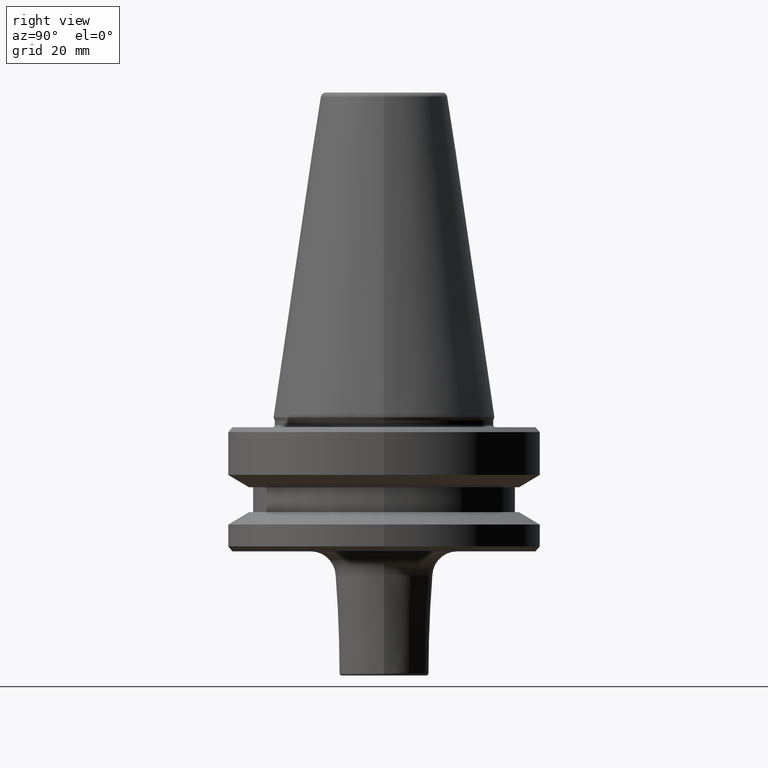
[diagram: clean part render]
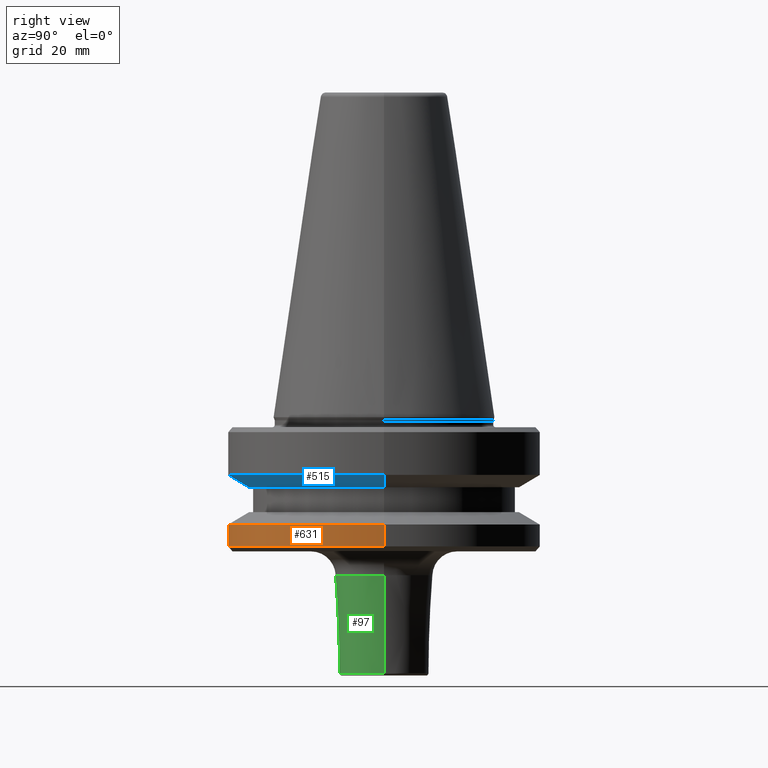
[diagram: same view with three faces highlighted in distinct colors, each labeled with its STEP entity id]
A machine part, right view with three faces highlighted in distinct colors.
Their STEP definitions:

[orange] entity #631 — the highlighted cylindrical surface (partial cylindrical patch) has radius 31.5 mm, axis along (-0, -0, 1).
#22 = VECTOR ( 'NONE', #291, 1000.000000000000000 ) ;
#49 = LINE ( 'NONE', #930, #22 ) ;
#115 = ORIENTED_EDGE ( 'NONE', *, *, #670, .T. ) ;
#121 = CARTESIAN_POINT ( 'NONE',  ( -31.50000000000008500, 3.857637417314172900E-015, -91.40000000000037500 ) ) ;
#148 = DIRECTION ( 'NONE',  ( -0.0000000000000000000, -0.0000000000000000000, 1.000000000000000000 ) ) ;
#151 = ORIENTED_EDGE ( 'NONE', *, *, #713, .F. ) ;
#191 = AXIS2_PLACEMENT_3D ( 'NONE', #519, #721, #795 ) ;
#200 = ORIENTED_EDGE ( 'NONE', *, *, #264, .T. ) ;
#211 = AXIS2_PLACEMENT_3D ( 'NONE', #694, #148, #371 ) ;
#219 = VERTEX_POINT ( 'NONE', #903 ) ;
#264 = EDGE_CURVE ( 'NONE', #917, #219, #390, .T. ) ;
#291 = DIRECTION ( 'NONE',  ( -0.0000000000000000000, -0.0000000000000000000, 1.000000000000000000 ) ) ;
#294 = DIRECTION ( 'NONE',  ( 1.000000000000000000, 0.0000000000000000000, 0.0000000000000000000 ) ) ;
#298 = VECTOR ( 'NONE', #393, 1000.000000000000000 ) ;
#371 = DIRECTION ( 'NONE',  ( 1.000000000000000000, 0.0000000000000000000, 0.0000000000000000000 ) ) ;
#390 = CIRCLE ( 'NONE', #1006, 31.50000000000008500 ) ;
#393 = DIRECTION ( 'NONE',  ( -0.0000000000000000000, -0.0000000000000000000, 1.000000000000000000 ) ) ;
#460 = CIRCLE ( 'NONE', #211, 31.50000000000008500 ) ;
#471 = EDGE_CURVE ( 'NONE', #477, #590, #460, .T. ) ;
#477 = VERTEX_POINT ( 'NONE', #961 ) ;
#491 = EDGE_LOOP ( 'NONE', ( #151, #200, #115, #526 ) ) ;
#519 = CARTESIAN_POINT ( 'NONE',  ( 0.0000000000000000000, 0.0000000000000000000, 6.357346922996331500 ) ) ;
#526 = ORIENTED_EDGE ( 'NONE', *, *, #471, .F. ) ;
#547 = FACE_OUTER_BOUND ( 'NONE', #491, .T. ) ;
#590 = VERTEX_POINT ( 'NONE', #858 ) ;
#631 = ADVANCED_FACE ( 'NONE', ( #547 ), #741, .T. ) ;
#670 = EDGE_CURVE ( 'NONE', #219, #590, #717, .T. ) ;
#694 = CARTESIAN_POINT ( 'NONE',  ( 0.0000000000000000000, 0.0000000000000000000, -87.00014200631733300 ) ) ;
#713 = EDGE_CURVE ( 'NONE', #917, #477, #49, .T. ) ;
#717 = LINE ( 'NONE', #982, #298 ) ;
#721 = DIRECTION ( 'NONE',  ( -0.0000000000000000000, -0.0000000000000000000, 1.000000000000000000 ) ) ;
#733 = DIRECTION ( 'NONE',  ( -0.0000000000000000000, -0.0000000000000000000, 1.000000000000000000 ) ) ;
#741 = CYLINDRICAL_SURFACE ( 'NONE', #191, 31.50000000000008500 ) ;
#795 = DIRECTION ( 'NONE',  ( 1.000000000000000000, 0.0000000000000000000, 0.0000000000000000000 ) ) ;
#858 = CARTESIAN_POINT ( 'NONE',  ( 31.50000000000008500, 0.0000000000000000000, -87.00014200631733300 ) ) ;
#903 = CARTESIAN_POINT ( 'NONE',  ( 31.50000000000008500, 0.0000000000000000000, -91.40000000000037500 ) ) ;
#914 = CARTESIAN_POINT ( 'NONE',  ( 0.0000000000000000000, 0.0000000000000000000, -91.40000000000037500 ) ) ;
#917 = VERTEX_POINT ( 'NONE', #121 ) ;
#930 = CARTESIAN_POINT ( 'NONE',  ( -31.50000000000008500, 3.857637417314172900E-015, 6.357346922996331500 ) ) ;
#961 = CARTESIAN_POINT ( 'NONE',  ( -31.50000000000008500, 3.857637417314172900E-015, -87.00014200631733300 ) ) ;
#982 = CARTESIAN_POINT ( 'NONE',  ( 31.50000000000008500, 0.0000000000000000000, 6.357346922996331500 ) ) ;
#1006 = AXIS2_PLACEMENT_3D ( 'NONE', #914, #733, #294 ) ;

[blue] entity #515 — the highlighted conical surface has half-angle 60 deg.
#35 = AXIS2_PLACEMENT_3D ( 'NONE', #204, #913, #656 ) ;
#45 = CIRCLE ( 'NONE', #35, 31.50000000000008500 ) ;
#61 = CARTESIAN_POINT ( 'NONE',  ( -31.50000000000008500, 3.857637417314172900E-015, -76.99985799368391800 ) ) ;
#65 = EDGE_LOOP ( 'NONE', ( #860, #228, #313, #737 ) ) ;
#99 = EDGE_CURVE ( 'NONE', #1015, #475, #649, .T. ) ;
#166 = DIRECTION ( 'NONE',  ( 1.000000000000000000, 0.0000000000000000000, 0.0000000000000000000 ) ) ;
#174 = LINE ( 'NONE', #799, #1009 ) ;
#187 = CONICAL_SURFACE ( 'NONE', #622, 31.50000000000008500, 1.047197551196597400 ) ;
#204 = CARTESIAN_POINT ( 'NONE',  ( 0.0000000000000000000, 0.0000000000000000000, -76.99985799368391800 ) ) ;
#228 = ORIENTED_EDGE ( 'NONE', *, *, #99, .T. ) ;
#245 = DIRECTION ( 'NONE',  ( -0.0000000000000000000, -0.0000000000000000000, 1.000000000000000000 ) ) ;
#313 = ORIENTED_EDGE ( 'NONE', *, *, #886, .T. ) ;
#364 = DIRECTION ( 'NONE',  ( 0.8660254037844383700, 0.0000000000000000000, 0.5000000000000003300 ) ) ;
#388 = CARTESIAN_POINT ( 'NONE',  ( -31.50000000000008500, 3.857637417314172900E-015, -76.99985799368391800 ) ) ;
#444 = CARTESIAN_POINT ( 'NONE',  ( 31.50000000000008500, 0.0000000000000000000, -76.99985799368391800 ) ) ;
#466 = DIRECTION ( 'NONE',  ( -0.0000000000000000000, -0.0000000000000000000, 1.000000000000000000 ) ) ;
#470 = EDGE_CURVE ( 'NONE', #1015, #481, #1047, .T. ) ;
#475 = VERTEX_POINT ( 'NONE', #1025 ) ;
#481 = VERTEX_POINT ( 'NONE', #388 ) ;
#500 = CARTESIAN_POINT ( 'NONE',  ( -27.16962701892322600, 3.592478546794674900E-015, -79.50000000000012800 ) ) ;
#508 = VERTEX_POINT ( 'NONE', #444 ) ;
#515 = ADVANCED_FACE ( 'NONE', ( #1045 ), #187, .T. ) ;
#606 = DIRECTION ( 'NONE',  ( -0.8660254037844383700, 1.060575238724906500E-016, 0.5000000000000003300 ) ) ;
#608 = AXIS2_PLACEMENT_3D ( 'NONE', #1044, #245, #699 ) ;
#622 = AXIS2_PLACEMENT_3D ( 'NONE', #976, #466, #166 ) ;
#649 = CIRCLE ( 'NONE', #608, 27.16962701892322600 ) ;
#656 = DIRECTION ( 'NONE',  ( 1.000000000000000000, 0.0000000000000000000, 0.0000000000000000000 ) ) ;
#699 = DIRECTION ( 'NONE',  ( 1.000000000000000000, 0.0000000000000000000, 0.0000000000000000000 ) ) ;
#737 = ORIENTED_EDGE ( 'NONE', *, *, #1042, .F. ) ;
#799 = CARTESIAN_POINT ( 'NONE',  ( 31.50000000000008500, 0.0000000000000000000, -76.99985799368391800 ) ) ;
#860 = ORIENTED_EDGE ( 'NONE', *, *, #470, .F. ) ;
#886 = EDGE_CURVE ( 'NONE', #475, #508, #174, .T. ) ;
#908 = VECTOR ( 'NONE', #606, 1000.000000000000100 ) ;
#913 = DIRECTION ( 'NONE',  ( -0.0000000000000000000, -0.0000000000000000000, 1.000000000000000000 ) ) ;
#976 = CARTESIAN_POINT ( 'NONE',  ( 0.0000000000000000000, 0.0000000000000000000, -76.99985799368391800 ) ) ;
#1009 = VECTOR ( 'NONE', #364, 1000.000000000000100 ) ;
#1015 = VERTEX_POINT ( 'NONE', #500 ) ;
#1025 = CARTESIAN_POINT ( 'NONE',  ( 27.16962701892322600, 0.0000000000000000000, -79.50000000000012800 ) ) ;
#1042 = EDGE_CURVE ( 'NONE', #481, #508, #45, .T. ) ;
#1044 = CARTESIAN_POINT ( 'NONE',  ( 0.0000000000000000000, 0.0000000000000000000, -79.50000000000012800 ) ) ;
#1045 = FACE_OUTER_BOUND ( 'NONE', #65, .T. ) ;
#1047 = LINE ( 'NONE', #61, #908 ) ;

[green] entity #97 — the highlighted conical surface has half-angle 2.291 deg.
#13 = DIRECTION ( 'NONE',  ( 0.03996803834887197700, 0.0000000000000000000, 0.9992009587217894900 ) ) ;
#31 = CARTESIAN_POINT ( 'NONE',  ( 9.019200639233005700, 0.0000000000000000000, -116.9199840191827900 ) ) ;
#44 = CARTESIAN_POINT ( 'NONE',  ( -9.019200639233005700, 1.104533519370446200E-015, -116.9199840191827900 ) ) ;
#79 = AXIS2_PLACEMENT_3D ( 'NONE', #892, #619, #943 ) ;
#87 = CARTESIAN_POINT ( 'NONE',  ( 0.0000000000000000000, 0.0000000000000000000, -116.9199840191827900 ) ) ;
#97 = ADVANCED_FACE ( 'NONE', ( #459 ), #438, .T. ) ;
#215 = CIRCLE ( 'NONE', #718, 9.019200639233005700 ) ;
#270 = EDGE_CURVE ( 'NONE', #984, #420, #539, .T. ) ;
#309 = EDGE_CURVE ( 'NONE', #406, #686, #732, .T. ) ;
#323 = ORIENTED_EDGE ( 'NONE', *, *, #309, .F. ) ;
#335 = VECTOR ( 'NONE', #13, 999.9999999999998900 ) ;
#406 = VERTEX_POINT ( 'NONE', #44 ) ;
#420 = VERTEX_POINT ( 'NONE', #1019 ) ;
#429 = CARTESIAN_POINT ( 'NONE',  ( -9.807993607669777300, 1.507049861719950200E-015, -97.20015980826369200 ) ) ;
#438 = CONICAL_SURFACE ( 'NONE', #540, 9.807993607669777300, 0.03997868712329044600 ) ;
#459 = FACE_OUTER_BOUND ( 'NONE', #898, .T. ) ;
#506 = ORIENTED_EDGE ( 'NONE', *, *, #648, .F. ) ;
#514 = VECTOR ( 'NONE', #791, 999.9999999999998900 ) ;
#521 = CIRCLE ( 'NONE', #79, 9.807993607669777300 ) ;
#539 = LINE ( 'NONE', #876, #335 ) ;
#540 = AXIS2_PLACEMENT_3D ( 'NONE', #902, #646, #1055 ) ;
#560 = ORIENTED_EDGE ( 'NONE', *, *, #746, .T. ) ;
#611 = DIRECTION ( 'NONE',  ( -0.0000000000000000000, -0.0000000000000000000, 1.000000000000000000 ) ) ;
#619 = DIRECTION ( 'NONE',  ( -0.0000000000000000000, -0.0000000000000000000, 1.000000000000000000 ) ) ;
#645 = DIRECTION ( 'NONE',  ( 1.000000000000000000, 0.0000000000000000000, 0.0000000000000000000 ) ) ;
#646 = DIRECTION ( 'NONE',  ( -0.0000000000000000000, -0.0000000000000000000, 1.000000000000000000 ) ) ;
#648 = EDGE_CURVE ( 'NONE', #686, #420, #521, .T. ) ;
#686 = VERTEX_POINT ( 'NONE', #429 ) ;
#718 = AXIS2_PLACEMENT_3D ( 'NONE', #87, #611, #645 ) ;
#732 = LINE ( 'NONE', #924, #514 ) ;
#746 = EDGE_CURVE ( 'NONE', #406, #984, #215, .T. ) ;
#791 = DIRECTION ( 'NONE',  ( -0.03996803834887197700, 4.894673023214473100E-018, 0.9992009587217894900 ) ) ;
#806 = ORIENTED_EDGE ( 'NONE', *, *, #270, .T. ) ;
#876 = CARTESIAN_POINT ( 'NONE',  ( 9.807993607669777300, 0.0000000000000000000, -97.20015980826369200 ) ) ;
#892 = CARTESIAN_POINT ( 'NONE',  ( 0.0000000000000000000, 0.0000000000000000000, -97.20015980826369200 ) ) ;
#898 = EDGE_LOOP ( 'NONE', ( #323, #560, #806, #506 ) ) ;
#902 = CARTESIAN_POINT ( 'NONE',  ( 0.0000000000000000000, 0.0000000000000000000, -97.20015980826369200 ) ) ;
#924 = CARTESIAN_POINT ( 'NONE',  ( -9.807993607669777300, 1.201132797769049200E-015, -97.20015980826369200 ) ) ;
#943 = DIRECTION ( 'NONE',  ( 1.000000000000000000, 0.0000000000000000000, 0.0000000000000000000 ) ) ;
#984 = VERTEX_POINT ( 'NONE', #31 ) ;
#1019 = CARTESIAN_POINT ( 'NONE',  ( 9.807993607669777300, 0.0000000000000000000, -97.20015980826369200 ) ) ;
#1055 = DIRECTION ( 'NONE',  ( 1.000000000000000000, 0.0000000000000000000, 0.0000000000000000000 ) ) ;